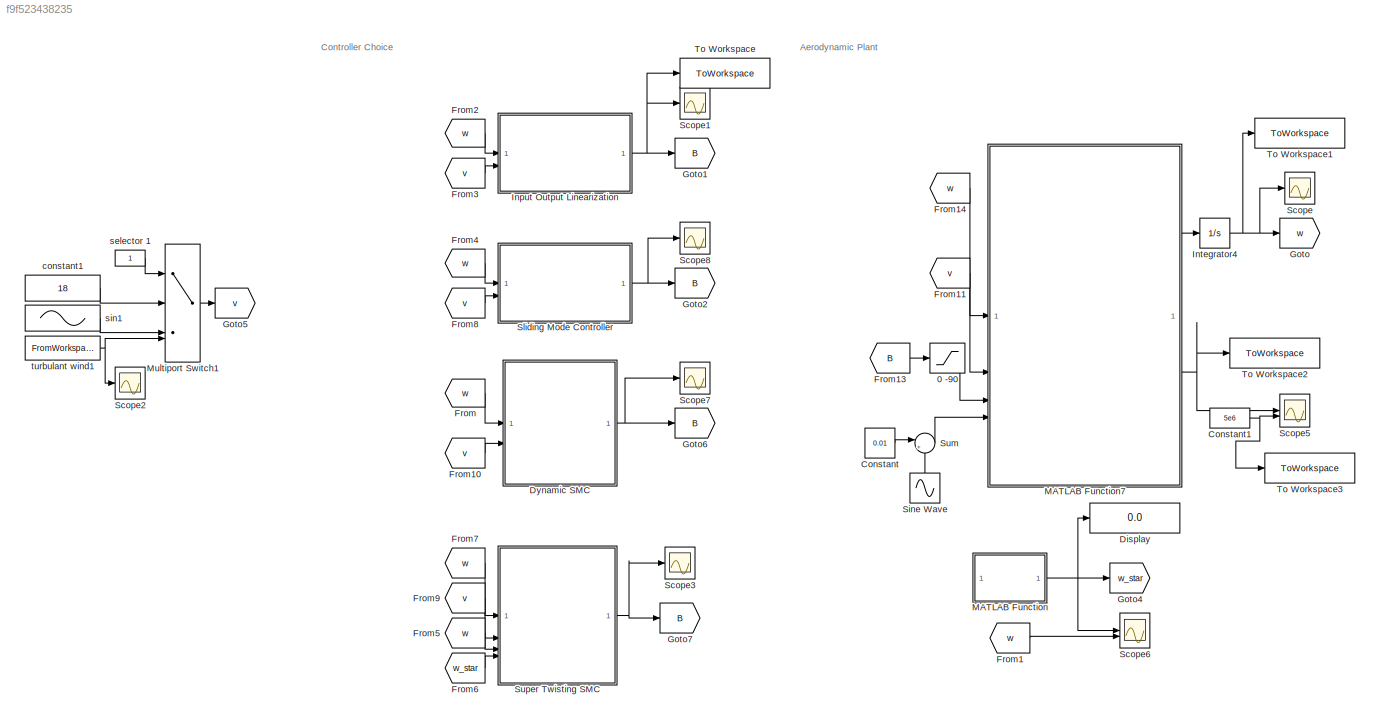
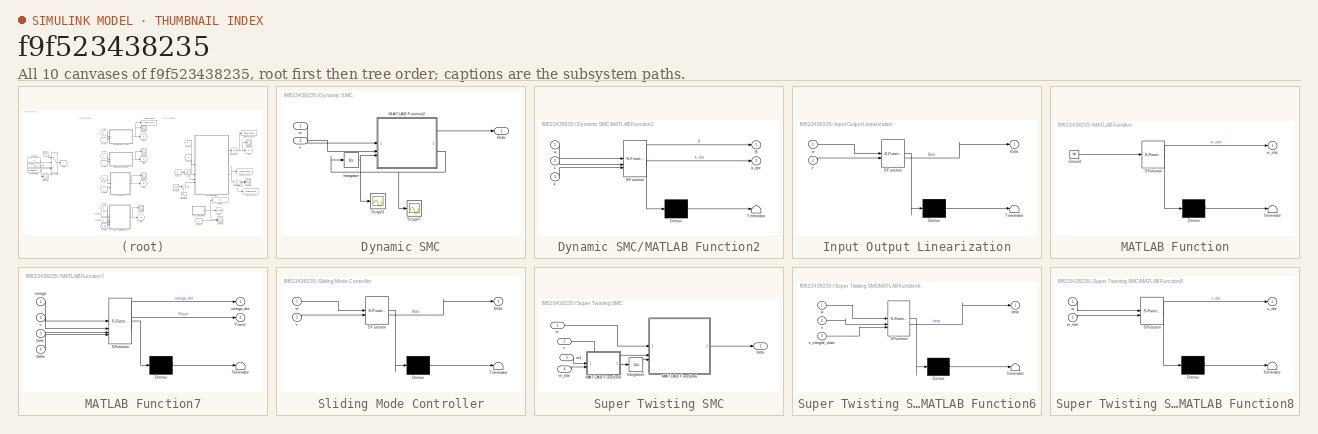
[diagram: thumbnail index - all 10 canvases of the model, root first then tree order]
MODEL slx_f9f523438235
KIND model
CONFIG AbsTol = auto
CONFIG EnableMultiTasking = off
CONFIG FixedStep = 0.0001
CONFIG InitFcn = ng       = 97;
CONFIG MaxStep = auto
CONFIG MinStep = auto
CONFIG RelTol = 1e-3
CONFIG SampleTimeConstraint = Unconstrained
CONFIG SolverName = ode1
CONFIG StartTime = 0.0
CONFIG StopTime = 50
BLOCK [Saturate] 0 -90
  LowerLimit = 0
  UpperLimit = 90
BLOCK [Constant] Constant
  Value = 0.01
BLOCK [Constant] Constant1
  Value = 5e6
BLOCK [Display] Display
  Decimation = 1
BLOCK [SubSystem] Dynamic SMC
  Commented = on
BLOCK [Outport] Dynamic SMC/Beta
BLOCK [Integrator] Dynamic SMC/Integrator
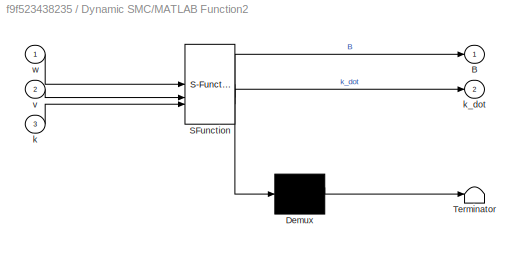
BLOCK [SubSystem] Dynamic SMC/MATLAB Function2
  ErrorFcn = Stateflow.Translate.translate
  LibrarySourceBlock = simulink/User-Defined\nFunctions/MATLAB Function
  PermitHierarchicalResolution = ExplicitOnly
  SFBlockType = MATLAB Function
  TreatAsAtomicUnit = on
BLOCK [Demux] Dynamic SMC/MATLAB Function2/ Demux 
  Outputs = 1
BLOCK [S-Function] Dynamic SMC/MATLAB Function2/ SFunction 
  EnableBusSupport = on
  FunctionName = sf_sfun
  PortCounts = [3 3]
  SFcnIsStateOwnerBlock = off
  SFunctionDeploymentMode = off
  Tag = Stateflow S-Function 2
BLOCK [Terminator] Dynamic SMC/MATLAB Function2/ Terminator 
BLOCK [Outport] Dynamic SMC/MATLAB Function2/B
BLOCK [Inport] Dynamic SMC/MATLAB Function2/k
  Port = 3
BLOCK [Outport] Dynamic SMC/MATLAB Function2/k_dot
  Port = 2
BLOCK [Inport] Dynamic SMC/MATLAB Function2/v
  Port = 2
BLOCK [Inport] Dynamic SMC/MATLAB Function2/w
BLOCK [Scope] Dynamic SMC/Scope1
  Floating = off
  NumInputPorts = 1
  ScopeSpecificationString = Simulink.scopes.TimeScopeBlockCfg('CurrentConfiguration', extmgr.ConfigurationSet(extmgr.Configuration('Core','General UI',true),extmgr.Configuration('Core','Source UI',true),extmgr.Configuration('Sources','WiredSimulink',true,'DataLoggingVariableName','ScopeData2'),extmgr.Configuration('Visuals','Time Domain',true,'SerializedDisplays',{struct('MinYLimReal','-0.06916','MaxYLimReal','0.62246','YLab...<+1487ch>
BLOCK [Scope] Dynamic SMC/Scope7
  Floating = off
  NumInputPorts = 1
  ScopeSpecificationString = Simulink.scopes.TimeScopeBlockCfg('CurrentConfiguration', extmgr.ConfigurationSet(extmgr.Configuration('Core','General UI',true),extmgr.Configuration('Core','Source UI',true),extmgr.Configuration('Sources','WiredSimulink',true,'DataLoggingVariableName','ScopeData7'),extmgr.Configuration('Visuals','Time Domain',true,'SerializedDisplays',{struct('MinYLimReal','-0.625','MaxYLimReal','0.625','YLabelRe...<+1487ch>
BLOCK [Inport] Dynamic SMC/v
  Port = 2
BLOCK [Inport] Dynamic SMC/w
BLOCK [From] From
  Commented = on
  GotoTag = w
BLOCK [From] From1
  GotoTag = w
BLOCK [From] From10
  Commented = on
  GotoTag = v
BLOCK [From] From11
  GotoTag = v
BLOCK [From] From13
  GotoTag = B
BLOCK [From] From14
  GotoTag = w
BLOCK [From] From2
  Commented = on
  GotoTag = w
BLOCK [From] From3
  Commented = on
  GotoTag = v
BLOCK [From] From4
  Commented = on
  GotoTag = w
BLOCK [From] From5
  GotoTag = w
BLOCK [From] From6
  GotoTag = w_star
BLOCK [From] From7
  GotoTag = w
BLOCK [From] From8
  Commented = on
  GotoTag = v
BLOCK [From] From9
  GotoTag = v
BLOCK [Goto] Goto
  GotoTag = w
BLOCK [Goto] Goto1
  Commented = on
  GotoTag = B
BLOCK [Goto] Goto2
  Commented = on
  GotoTag = B
BLOCK [Goto] Goto4
  GotoTag = w_star
BLOCK [Goto] Goto5
  GotoTag = v
BLOCK [Goto] Goto6
  Commented = on
  GotoTag = B
BLOCK [Goto] Goto7
  GotoTag = B
BLOCK [SubSystem] Input Output Linearization
  Commented = on
  ErrorFcn = Stateflow.Translate.translate
  LibrarySourceBlock = simulink/User-Defined\nFunctions/MATLAB Function
  PermitHierarchicalResolution = ExplicitOnly
  SFBlockType = MATLAB Function
  TreatAsAtomicUnit = on
BLOCK [Demux] Input Output Linearization/ Demux 
  Outputs = 1
BLOCK [S-Function] Input Output Linearization/ SFunction 
  EnableBusSupport = on
  FunctionName = sf_sfun
  PortCounts = [2 2]
  SFcnIsStateOwnerBlock = off
  SFunctionDeploymentMode = off
  Tag = Stateflow S-Function 1
BLOCK [Terminator] Input Output Linearization/ Terminator 
BLOCK [Outport] Input Output Linearization/Beta
BLOCK [Inport] Input Output Linearization/v
  Port = 2
BLOCK [Inport] Input Output Linearization/w
BLOCK [Integrator] Integrator4
  InitialCondition = 2
BLOCK [SubSystem] MATLAB Function
  ErrorFcn = Stateflow.Translate.translate
  LibrarySourceBlock = simulink/User-Defined\nFunctions/MATLAB Function
  PermitHierarchicalResolution = ExplicitOnly
  SFBlockType = MATLAB Function
  TreatAsAtomicUnit = on
BLOCK [Demux] MATLAB Function/ Demux 
  Outputs = 1
BLOCK [Ground] MATLAB Function/ Ground 
BLOCK [S-Function] MATLAB Function/ SFunction 
  EnableBusSupport = on
  FunctionName = sf_sfun
  PortCounts = [1 2]
  SFcnIsStateOwnerBlock = off
  SFunctionDeploymentMode = off
  Tag = Stateflow S-Function 5
BLOCK [Terminator] MATLAB Function/ Terminator 
BLOCK [Outport] MATLAB Function/w_star
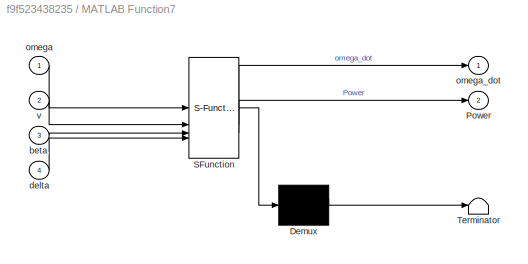
BLOCK [SubSystem] MATLAB Function7
  ErrorFcn = Stateflow.Translate.translate
  LibrarySourceBlock = simulink/User-Defined\nFunctions/MATLAB Function
  PermitHierarchicalResolution = ExplicitOnly
  SFBlockType = MATLAB Function
  TreatAsAtomicUnit = on
BLOCK [Demux] MATLAB Function7/ Demux 
  Outputs = 1
BLOCK [S-Function] MATLAB Function7/ SFunction 
  EnableBusSupport = on
  FunctionName = sf_sfun
  PortCounts = [4 3]
  SFcnIsStateOwnerBlock = off
  SFunctionDeploymentMode = off
  Tag = Stateflow S-Function 3
BLOCK [Terminator] MATLAB Function7/ Terminator 
BLOCK [Outport] MATLAB Function7/Power
  Port = 2
BLOCK [Inport] MATLAB Function7/beta
  Port = 3
BLOCK [Inport] MATLAB Function7/delta
  Port = 4
BLOCK [Inport] MATLAB Function7/omega
BLOCK [Outport] MATLAB Function7/omega_dot
BLOCK [Inport] MATLAB Function7/v
  Port = 2
BLOCK [MultiPortSwitch] Multiport Switch1
  InputSameDT = off
  SaturateOnIntegerOverflow = off
BLOCK [Scope] Scope
  Floating = off
  NumInputPorts = 1
  ScopeSpecificationString = Simulink.scopes.TimeScopeBlockCfg('CurrentConfiguration', extmgr.ConfigurationSet(extmgr.Configuration('Core','General UI',true),extmgr.Configuration('Core','Source UI',true),extmgr.Configuration('Sources','WiredSimulink',true,'DataLoggingVariableName','ScopeData1'),extmgr.Configuration('Visuals','Time Domain',true,'SerializedDisplays',{struct('MinYLimReal','1.0875','MaxYLimReal','2.17062','YLabel...<+1528ch>
BLOCK [Scope] Scope1
  Commented = on
  Floating = off
  NumInputPorts = 1
  ScopeSpecificationString = Simulink.scopes.TimeScopeBlockCfg('CurrentConfiguration', extmgr.ConfigurationSet(extmgr.Configuration('Core','General UI',true),extmgr.Configuration('Core','Source UI',true),extmgr.Configuration('Sources','WiredSimulink',true,'DataLoggingVariableName','ScopeData1'),extmgr.Configuration('Visuals','Time Domain',true,'SerializedDisplays',{struct('MinYLimReal','-164.15614','MaxYLimReal','1638.82366',...<+1492ch>
BLOCK [Scope] Scope2
  Floating = off
  NumInputPorts = 1
  ScopeSpecificationString = Simulink.scopes.TimeScopeBlockCfg('CurrentConfiguration', extmgr.ConfigurationSet(extmgr.Configuration('Core','General UI',true),extmgr.Configuration('Core','Source UI',true),extmgr.Configuration('Sources','WiredSimulink',true,'DataLoggingVariableName','ScopeData3'),extmgr.Configuration('Visuals','Time Domain',true,'SerializedDisplays',{struct('MinYLimReal','17.07227','MaxYLimReal','20.72475','YLa...<+1410ch>
BLOCK [Scope] Scope3
  Floating = off
  NumInputPorts = 1
  ScopeSpecificationString = Simulink.scopes.TimeScopeBlockCfg('CurrentConfiguration', extmgr.ConfigurationSet(extmgr.Configuration('Core','General UI',true),extmgr.Configuration('Core','Source UI',true),extmgr.Configuration('Sources','WiredSimulink',true,'DataLoggingVariableName','ScopeData2'),extmgr.Configuration('Visuals','Time Domain',true),extmgr.Configuration('Tools','Plot Navigation',true),extmgr.Configuration('Tools',...<+40ch>
BLOCK [Scope] Scope5
  Floating = off
  NumInputPorts = 2
  ScopeSpecificationString = Simulink.scopes.TimeScopeBlockCfg('CurrentConfiguration', extmgr.ConfigurationSet(extmgr.Configuration('Core','General UI',true),extmgr.Configuration('Core','Source UI',true),extmgr.Configuration('Sources','WiredSimulink',true,'DataLoggingVariableName','ScopeData2'),extmgr.Configuration('Visuals','Time Domain',true,'SerializedDisplays',{struct('MinYLimReal','4579994.75','MaxYLimReal','8780047.25',...<+1654ch>
BLOCK [Scope] Scope6
  Floating = off
  NumInputPorts = 2
  ScopeSpecificationString = Simulink.scopes.TimeScopeBlockCfg('CurrentConfiguration', extmgr.ConfigurationSet(extmgr.Configuration('Core','General UI',true),extmgr.Configuration('Core','Source UI',true),extmgr.Configuration('Sources','WiredSimulink',true,'DataLoggingVariableName','ScopeData6'),extmgr.Configuration('Visuals','Time Domain',true,'SerializedDisplays',{struct('MinYLimReal','1.0875','MaxYLimReal','2.17062','YLabel...<+1546ch>
BLOCK [Scope] Scope7
  Commented = on
  Floating = off
  NumInputPorts = 1
  ScopeSpecificationString = Simulink.scopes.TimeScopeBlockCfg('CurrentConfiguration', extmgr.ConfigurationSet(extmgr.Configuration('Core','General UI',true),extmgr.Configuration('Core','Source UI',true),extmgr.Configuration('Sources','WiredSimulink',true,'DataLoggingVariableName','ScopeData3'),extmgr.Configuration('Visuals','Time Domain',true),extmgr.Configuration('Tools','Plot Navigation',true),extmgr.Configuration('Tools',...<+40ch>
BLOCK [Scope] Scope8
  Commented = on
  Floating = off
  NumInputPorts = 1
  ScopeSpecificationString = Simulink.scopes.TimeScopeBlockCfg('CurrentConfiguration', extmgr.ConfigurationSet(extmgr.Configuration('Core','General UI',true),extmgr.Configuration('Core','Source UI',true),extmgr.Configuration('Sources','WiredSimulink',true,'DataLoggingVariableName','ScopeData4'),extmgr.Configuration('Visuals','Time Domain',true),extmgr.Configuration('Tools','Plot Navigation',true),extmgr.Configuration('Tools',...<+40ch>
BLOCK [Sin] Sine Wave
  Amplitude = 0.2
  Frequency = 0.5
  NameLocation = right
  SampleTime = 0
BLOCK [SubSystem] Sliding Mode Controller
  Commented = on
  ErrorFcn = Stateflow.Translate.translate
  LibrarySourceBlock = simulink/User-Defined\nFunctions/MATLAB Function
  PermitHierarchicalResolution = ExplicitOnly
  SFBlockType = MATLAB Function
  TreatAsAtomicUnit = on
BLOCK [Demux] Sliding Mode Controller/ Demux 
  Outputs = 1
BLOCK [S-Function] Sliding Mode Controller/ SFunction 
  EnableBusSupport = on
  FunctionName = sf_sfun
  PortCounts = [2 2]
  SFcnIsStateOwnerBlock = off
  SFunctionDeploymentMode = off
  Tag = Stateflow S-Function 4
BLOCK [Terminator] Sliding Mode Controller/ Terminator 
BLOCK [Outport] Sliding Mode Controller/Beta
BLOCK [Inport] Sliding Mode Controller/v
  Port = 2
BLOCK [Inport] Sliding Mode Controller/w
BLOCK [Sum] Sum
  Inputs = |++
BLOCK [SubSystem] Super Twisting SMC
BLOCK [Integrator] Super Twisting SMC/Integrator5
BLOCK [SubSystem] Super Twisting SMC/MATLAB Function6
  ErrorFcn = Stateflow.Translate.translate
  PermitHierarchicalResolution = ExplicitOnly
  SFBlockType = MATLAB Function
  TreatAsAtomicUnit = on
BLOCK [Demux] Super Twisting SMC/MATLAB Function6/ Demux 
  Outputs = 1
BLOCK [S-Function] Super Twisting SMC/MATLAB Function6/ SFunction 
  EnableBusSupport = on
  FunctionName = sf_sfun
  PortCounts = [3 2]
  SFcnIsStateOwnerBlock = off
  SFunctionDeploymentMode = off
  Tag = Stateflow S-Function 8
BLOCK [Terminator] Super Twisting SMC/MATLAB Function6/ Terminator 
BLOCK [Outport] Super Twisting SMC/MATLAB Function6/beta
  VectorParamsAs1DForOutWhenUnconnected = off
BLOCK [Inport] Super Twisting SMC/MATLAB Function6/s_integral_state
  Port = 3
BLOCK [Inport] Super Twisting SMC/MATLAB Function6/v
  Port = 2
BLOCK [Inport] Super Twisting SMC/MATLAB Function6/w
BLOCK [SubSystem] Super Twisting SMC/MATLAB Function8
  ErrorFcn = Stateflow.Translate.translate
  PermitHierarchicalResolution = ExplicitOnly
  SFBlockType = MATLAB Function
  TreatAsAtomicUnit = on
BLOCK [Demux] Super Twisting SMC/MATLAB Function8/ Demux 
  Outputs = 1
BLOCK [S-Function] Super Twisting SMC/MATLAB Function8/ SFunction 
  EnableBusSupport = on
  FunctionName = sf_sfun
  PortCounts = [2 2]
  SFcnIsStateOwnerBlock = off
  SFunctionDeploymentMode = off
  Tag = Stateflow S-Function 9
BLOCK [Terminator] Super Twisting SMC/MATLAB Function8/ Terminator 
BLOCK [Outport] Super Twisting SMC/MATLAB Function8/v_dot
  VectorParamsAs1DForOutWhenUnconnected = off
BLOCK [Inport] Super Twisting SMC/MATLAB Function8/w
BLOCK [Inport] Super Twisting SMC/MATLAB Function8/w_star
  Port = 2
BLOCK [Outport] Super Twisting SMC/beta
BLOCK [Inport] Super Twisting SMC/v
  Port = 2
BLOCK [Inport] Super Twisting SMC/w
BLOCK [Inport] Super Twisting SMC/w1
  Port = 3
BLOCK [Inport] Super Twisting SMC/w_star
  Port = 4
BLOCK [ToWorkspace] To Workspace
  Commented = on
  FixptAsFi = on
  MaxDataPoints = inf
  SampleTime = -1
  VariableName = IO_beta
BLOCK [ToWorkspace] To Workspace1
  FixptAsFi = on
  MaxDataPoints = inf
  SampleTime = -1
  VariableName = Omega
BLOCK [ToWorkspace] To Workspace2
  FixptAsFi = on
  MaxDataPoints = inf
  SampleTime = -1
  VariableName = Power
BLOCK [ToWorkspace] To Workspace3
  FixptAsFi = on
  MaxDataPoints = inf
  SampleTime = -1
  VariableName = PowerRef
BLOCK [Constant] constant1
  Value = 18
BLOCK [Constant] selector 1
BLOCK [Sin] sin1
  Bias = 20
  Frequency = 0.5
  SampleTime = 0
BLOCK [FromWorkspace] turbulant wind1
  VariableName = Wind_TS
ANNOTATION (root): Aerodynamic Plant
ANNOTATION (root): Controller Choice
LINE 0 -90:1 -> MATLAB Function7:3
NET Constant1:1 -> Scope5:2, To Workspace3:1
LINE Constant:1 -> Sum:1
NET Dynamic SMC/Integrator:1 -> Dynamic SMC/MATLAB Function2:3, Dynamic SMC/Scope1:1
LINE Dynamic SMC/MATLAB Function2:1 -> Dynamic SMC/Beta:1
NET Dynamic SMC/MATLAB Function2:2 -> Dynamic SMC/Integrator:1, Dynamic SMC/Scope7:1
LINE Dynamic SMC/v:1 -> Dynamic SMC/MATLAB Function2:2
LINE Dynamic SMC/w:1 -> Dynamic SMC/MATLAB Function2:1
NET Dynamic SMC:1 -> Goto6:1, Scope7:1
LINE From10:1 -> Dynamic SMC:2
LINE From11:1 -> MATLAB Function7:2
LINE From13:1 -> 0 -90:1
LINE From14:1 -> MATLAB Function7:1
LINE From1:1 -> Scope6:2
LINE From2:1 -> Input Output Linearization:1
LINE From3:1 -> Input Output Linearization:2
LINE From4:1 -> Sliding Mode Controller:1
LINE From5:1 -> Super Twisting SMC:3
LINE From6:1 -> Super Twisting SMC:4
LINE From7:1 -> Super Twisting SMC:1
LINE From8:1 -> Sliding Mode Controller:2
LINE From9:1 -> Super Twisting SMC:2
LINE From:1 -> Dynamic SMC:1
NET Input Output Linearization:1 -> Goto1:1, Scope1:1, To Workspace:1
NET Integrator4:1 -> Goto:1, Scope:1, To Workspace1:1
LINE MATLAB Function7:1 -> Integrator4:1
NET MATLAB Function7:2 -> Scope5:1, To Workspace2:1
NET MATLAB Function:1 -> Display:1, Goto4:1, Scope6:1
LINE Multiport Switch1:1 -> Goto5:1
LINE Sine Wave:1 -> Sum:2
NET Sliding Mode Controller:1 -> Goto2:1, Scope8:1
LINE Sum:1 -> MATLAB Function7:4
LINE Super Twisting SMC/Integrator5:1 -> Super Twisting SMC/MATLAB Function6:3
LINE Super Twisting SMC/MATLAB Function6:1 -> Super Twisting SMC/beta:1
LINE Super Twisting SMC/MATLAB Function8:1 -> Super Twisting SMC/Integrator5:1
LINE Super Twisting SMC/v:1 -> Super Twisting SMC/MATLAB Function6:2
LINE Super Twisting SMC/w1:1 -> Super Twisting SMC/MATLAB Function8:1
LINE Super Twisting SMC/w:1 -> Super Twisting SMC/MATLAB Function6:1
LINE Super Twisting SMC/w_star:1 -> Super Twisting SMC/MATLAB Function8:2
NET Super Twisting SMC:1 -> Goto7:1, Scope3:1
LINE constant1:1 -> Multiport Switch1:2
LINE selector 1:1 -> Multiport Switch1:1
LINE sin1:1 -> Multiport Switch1:3
NET turbulant wind1:1 -> Multiport Switch1:4, Scope2:1
note: NET lines group one-source signal fan-out (src -> all destinations, sorted); 1:1 wires keep LINE
CHART Input Output Linearization states=1 transitions=1
  STATE_LABEL 'eML_blk_kernel()'
  STATE_LABEL 'SCRIPT:\nfunction Beta  = controller(w,v)\n\n% Parameters\nng       = 97;\ntaugStar = 43093;      % N.m (generator rated torque)\nR        = 63;         % m\nrho      = 1.22;       % kg/m^3\nJ        = 38759228;   % kg.m^2\n\n% Tip-speed ratio\nlambda = (w * R) / v;  \nk=45;\n% Coefficients\nc0 = 0.5;  c1 = 73.5; c2 = 0.4; c3 = 5;\nc4 = 13.125; c5 = 0.08; c6 = 0.035;\nu=20;\n% Aerodynamic Cp approximation (depends...<+555ch>'
CHART Dynamic SMC/MATLAB Function2 states=1 transitions=1
  STATE_LABEL 'eML_blk_kernel()'
  STATE_LABEL 'SCRIPT:\nfunction [B,k_dot]  = DynamicGain_SlidingModeController(w,v,k)\n\n% Parameters\nng       = 97;\ntaugStar = 43093;      % N.m (generator rated torque)\nR        = 63;         % m\nrho      = 1.22;       % kg/m^3\nJ        = 38759228;   % kg.m^2\nE= 0.0003;\n\n% Tip-speed ratio\nlambda = (w * R) / v;  \n\n% Coefficients\nc0 = 0.5;  c1 = 73.5; c2 = 0.4; c3 = 5;\nc4 = 13.125; c5 = 0.08; c6 = 0.035;\nu=20;\n% A...<+625ch>'
CHART MATLAB Function7 states=1 transitions=1
  STATE_LABEL 'eML_blk_kernel()'
  STATE_LABEL 'SCRIPT:\nfunction [omega_dot, Power] = Plant_Q1_Simple(omega, v, beta, delta)\n\n% Parameters\nng       = 97;\ntaugStar = 43093;      % N.m (generator rated torque)\nR        = 63;         % m\nrho      = 1.22;       % kg/m^3\nJ        = 38759228;   % kg.m^2\n\n% Tip-speed ratio\nlambda = (omega * R) / v;  \n\n% Coefficients\nc0 = 0.5;  c1 = 73.5; c2 = 0.4; c3 = 5;\nc4 = 13.125; c5 = 0.08; c6 = 0.035;\n\nu = beta;...<+585ch>'
CHART Sliding Mode Controller states=1 transitions=1
  STATE_LABEL 'eML_blk_kernel()'
  STATE_LABEL 'SCRIPT:\nfunction Beta  = SlidingModeController(w,v)\n\n% Parameters\nng       = 97;\ntaugStar = 43093;      % N.m (generator rated torque)\nR        = 63;         % m\nrho      = 1.22;       % kg/m^3\nJ        = 38759228;   % kg.m^2\n\n% Tip-speed ratio\nlambda = (w * R) / v;  \nk=10;\n% Coefficients\nc0 = 0.5;  c1 = 73.5; c2 = 0.4; c3 = 5;\nc4 = 13.125; c5 = 0.08; c6 = 0.035;\nu=20;\n% Aerodynamic Cp approximati...<+575ch>'
CHART MATLAB Function states=1 transitions=1
  STATE_LABEL 'eML_blk_kernel()'
  STATE_LABEL 'SCRIPT:\nfunction w_star = fcn()\nng       = 97;\ntaugStar = 43093;      % N.m (generator rated torque)\nR        = 63;         % m\nrho      = 1.22;       % kg/m^3\nJ        = 38759228;\n\nn_g=97; %Gearbox ratio\nt_g=4.309355*10^4;  %Rated generator torque\nP_star=5*10^6; % Rated electrical power\n\nw_star=P_star/(n_g*t_g);\n\n'
CHART Super Twisting SMC/MATLAB Function6 states=1 transitions=1
  STATE_LABEL 'eML_blk_kernel()'
  STATE_LABEL 'SCRIPT:\nfunction beta  = SuperTwisting_Controller(w, v, s_integral_state)\n% Parameters (matching your existing plant)\nng       = 97;\ntaugStar = 43093;      \nR        = 63;         \nrho      = 1.22;       \nJ        = 38759228;   \nP_star   = 5e6;\n\n% Calculate rated speed and sliding surface\nw_star = P_star / (ng * taugStar);\ns = w - w_star;\n\n% --- Gains Selection ---\n% Tune k1 and k2 based on the bo...<+706ch>'
CHART Super Twisting SMC/MATLAB Function8 states=1 transitions=1
  STATE_LABEL 'eML_blk_kernel()'
  STATE_LABEL 'SCRIPT:\nfunction v_dot = fcn(w, w_star)\nk2 = 0.02;\ns = w - w_star;\n\nv_dot = -k2*sign(s);\n\n\nend'
CHART  states=0 transitions=0
CHART  states=0 transitions=0
CHART  states=0 transitions=0
CHART  states=0 transitions=0
CHART  states=0 transitions=0
CHART  states=0 transitions=0
CHART  states=0 transitions=0
